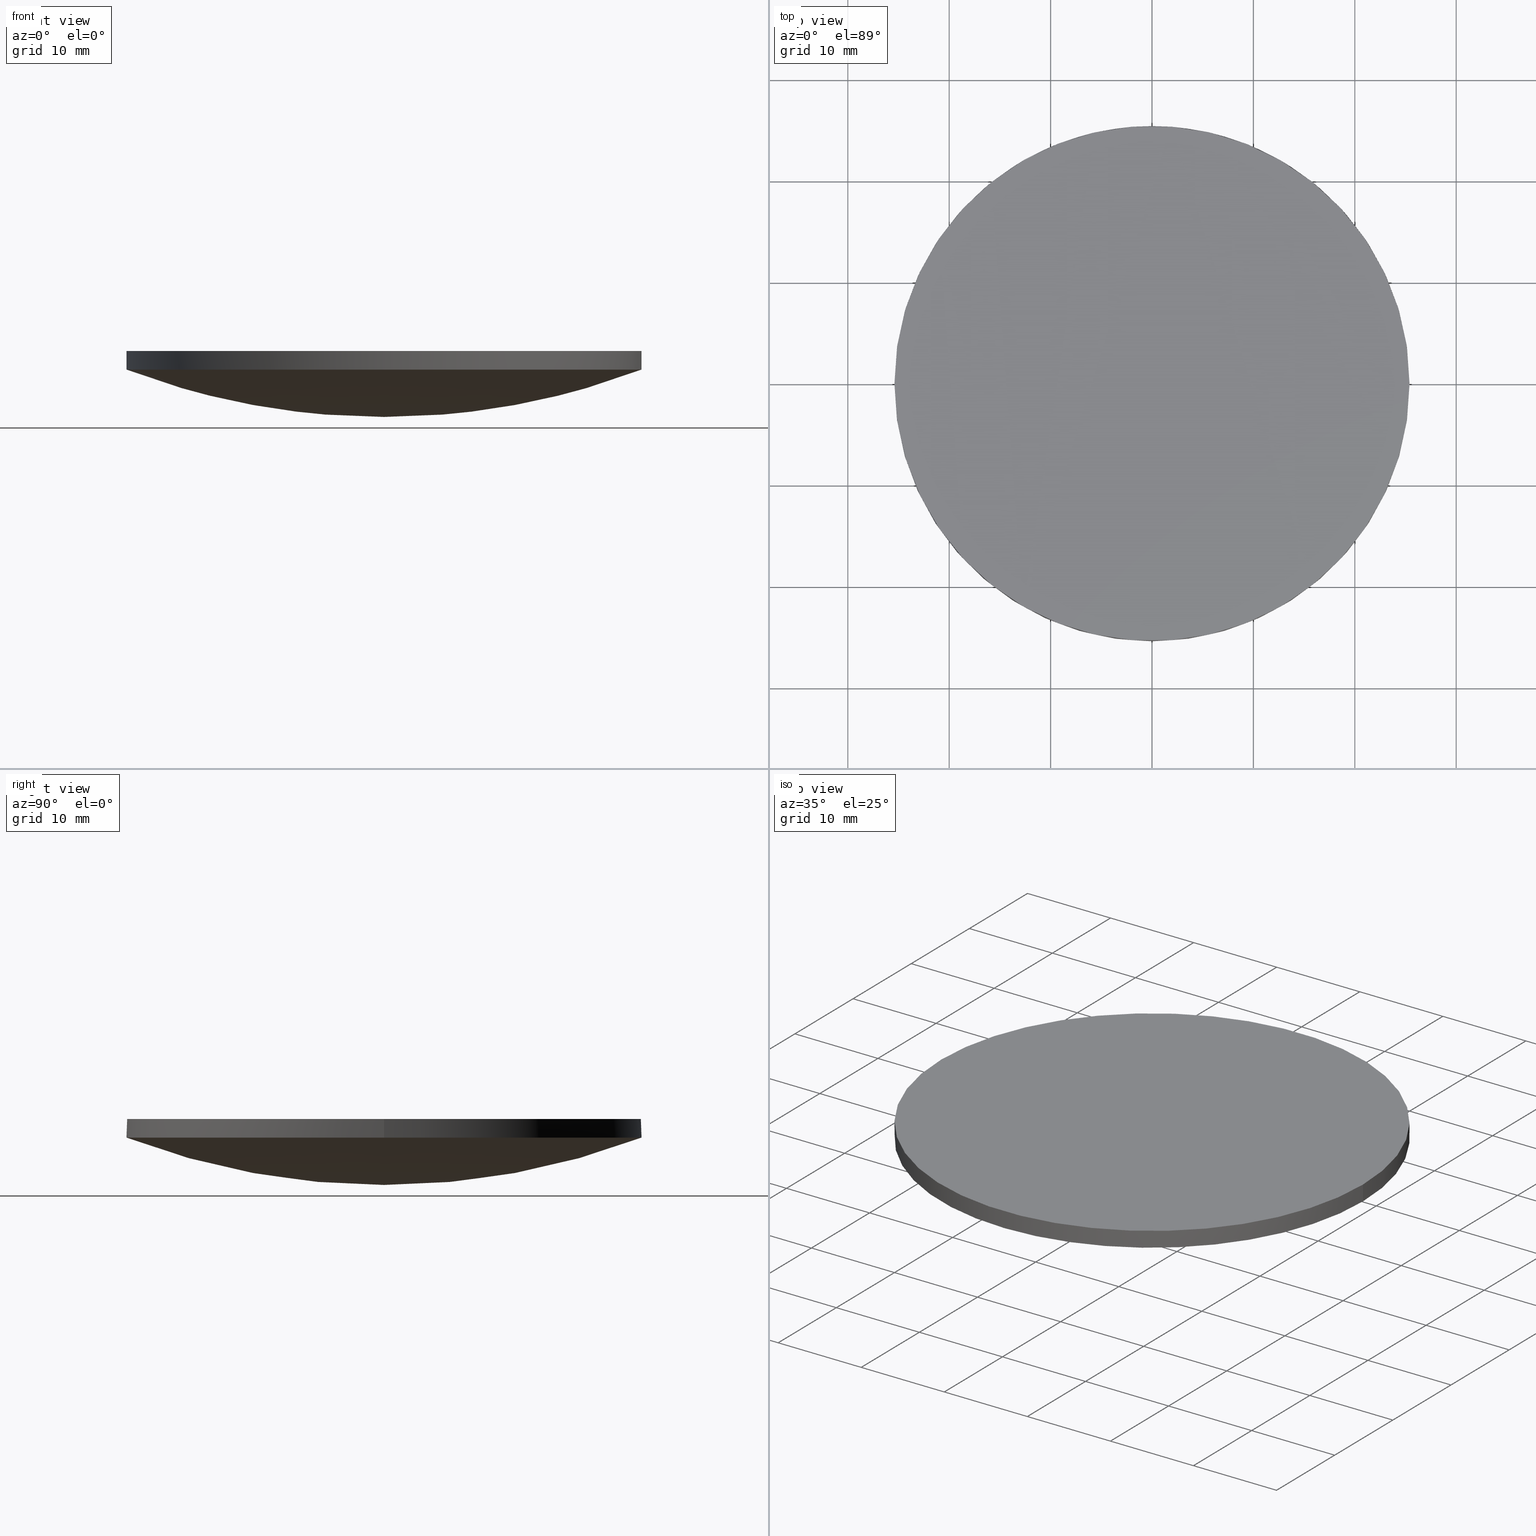
[diagram: canonical four-view strip — front | top / right | iso, engineering-drawing reading convention]
A machine part, canonical four-view strip (front | top / right | iso — engineering-drawing reading convention). The complete STEP part file that produces these views, byte-faithful:
ISO-10303-21;
HEADER;
FILE_DESCRIPTION (( 'STEP AP203' ),
    '1' );
FILE_NAME ('110-1511E UVFS pl-cx 50.8 F150.STEP',
    '2018-12-13T15:10:35',
    ( '' ),
    ( '' ),
    'SwSTEP 2.0',
    'SolidWorks 2017',
    '' );
FILE_SCHEMA (( 'CONFIG_CONTROL_DESIGN' ));
ENDSEC;

DATA;
#1 = APPLICATION_CONTEXT ( 'configuration controlled 3d designs of mechanical parts and assemblies' ) ;
#2 = EDGE_CURVE ( 'NONE', #72, #185, #64, .T. ) ;
#3 = PERSON_AND_ORGANIZATION_ROLE ( 'creator' ) ;
#4 = CALENDAR_DATE ( 2018, 13, 12 ) ;
#5 = LINE ( 'NONE', #129, #232 ) ;
#6 = ORIENTED_EDGE ( 'NONE', *, *, #222, .F. ) ;
#7 = CC_DESIGN_DATE_AND_TIME_ASSIGNMENT ( #191, #135, ( #235 ) ) ;
#8 = AXIS2_PLACEMENT_3D ( 'NONE', #42, #83, #117 ) ;
#9 = COORDINATED_UNIVERSAL_TIME_OFFSET ( 2, 0, .AHEAD. ) ;
#10 = ORIENTED_EDGE ( 'NONE', *, *, #177, .T. ) ;
#11 =( BOUNDED_SURFACE ( )  B_SPLINE_SURFACE ( 3, 3, ( 
 ( #228, #88, #234, #213 ),
 ( #161, #66, #229, #125 ),
 ( #104, #49, #148, #30 ),
 ( #199, #231, #166, #126 ) ),
 .UNSPECIFIED., .F., .F., .F. ) 
 B_SPLINE_SURFACE_WITH_KNOTS ( ( 4, 4 ),
 ( 4, 4 ),
 ( 0.0000000000000000000, 1.000000000000000000 ),
 ( 0.0000000000000000000, 1.000000000000000000 ),
 .UNSPECIFIED. ) 
 GEOMETRIC_REPRESENTATION_ITEM ( )  RATIONAL_B_SPLINE_SURFACE ( (
 ( 1.000000000000000000, 0.9888780142819927300, 0.9888780142819927300, 1.000000000000000000),
 ( 0.9553613089865301600, 0.9447357941524452400, 0.9447357941524452400, 0.9553613089865301600),
 ( 0.9553613089865301600, 0.9447357941524452400, 0.9447357941524452400, 0.9553613089865301600),
 ( 1.000000000000000000, 0.9888780142819927300, 0.9888780142819927300, 1.000000000000000000) ) ) 
 REPRESENTATION_ITEM ( '' )  SURFACE ( )  );
#12 = EDGE_LOOP ( 'NONE', ( #121, #143 ) ) ;
#13 = AXIS2_PLACEMENT_3D ( 'NONE', #167, #18, #73 ) ;
#14 = CARTESIAN_POINT ( 'NONE',  ( 1.339434816747141800E-014, -8.963799327656920100, -1.668294966149202400 ) ) ;
#15 = CARTESIAN_POINT ( 'NONE',  ( 1.339434816747141500E-014, 8.963799327656916600, -1.668294966149198100 ) ) ;
#16 = DATE_AND_TIME ( #91, #189 ) ;
#17 = CIRCLE ( 'NONE', #81, 71.40999999999999700 ) ;
#18 = DIRECTION ( 'NONE',  ( -0.0000000000000000000, -0.0000000000000000000, -1.000000000000000000 ) ) ;
#19 = DIRECTION ( 'NONE',  ( 0.0000000000000000000, 0.0000000000000000000, 1.000000000000000000 ) ) ;
#20 = DIRECTION ( 'NONE',  ( 1.000000000000000000, 0.0000000000000000000, 0.0000000000000000000 ) ) ;
#21 = CIRCLE ( 'NONE', #13, 25.39999999999999900 ) ;
#22 = EDGE_LOOP ( 'NONE', ( #99, #198, #60 ) ) ;
#23 = AXIS2_PLACEMENT_3D ( 'NONE', #140, #45, #179 ) ;
#24 = CC_DESIGN_APPROVAL ( #190, ( #235 ) ) ;
#25 = ORIENTED_EDGE ( 'NONE', *, *, #222, .T. ) ;
#26 = CARTESIAN_POINT ( 'NONE',  ( 23.83508076458894100, 25.69100117748867300, 9.190634176779019200 ) ) ;
#27 = DESIGN_CONTEXT ( 'detailed design', #1, 'design' ) ;
#28 = CC_DESIGN_DATE_AND_TIME_ASSIGNMENT ( #47, #89, ( #127 ) ) ;
#29 = DIRECTION ( 'NONE',  ( -0.0000000000000000000, -0.0000000000000000000, -1.000000000000000000 ) ) ;
#30 = CARTESIAN_POINT ( 'NONE',  ( 0.0000000000000000000, 8.963799327656918300, -1.668294966149200400 ) ) ;
#31 = ORGANIZATION ( 'UNSPECIFIED', 'UNSPECIFIED', '' ) ;
#32 =( LENGTH_UNIT ( ) NAMED_UNIT ( * ) SI_UNIT ( .MILLI., .METRE. ) );
#33 = PRODUCT_RELATED_PRODUCT_CATEGORY ( 'detail', '', ( #141 ) ) ;
#34 = DIRECTION ( 'NONE',  ( 0.0000000000000000000, 0.0000000000000000000, 1.000000000000000000 ) ) ;
#35 = AXIS2_PLACEMENT_3D ( 'NONE', #69, #215, #211 ) ;
#36 = DATE_AND_TIME ( #76, #227 ) ;
#37 = PERSON_AND_ORGANIZATION_ROLE ( 'creator' ) ;
#38 = ADVANCED_FACE ( 'NONE', ( #181 ), #61, .T. ) ;
#39 = APPROVAL_DATE_TIME ( #16, #200 ) ;
#40 = CLOSED_SHELL ( 'NONE', ( #38, #203, #133, #115, #205 ) ) ;
#41 = CIRCLE ( 'NONE', #35, 25.39999999999999900 ) ;
#42 = CARTESIAN_POINT ( 'NONE',  ( 9.992007221626412800E-016, 4.884981308350691100E-015, 6.500000000000000900 ) ) ;
#43 = ORIENTED_EDGE ( 'NONE', *, *, #187, .T. ) ;
#44 = CARTESIAN_POINT ( 'NONE',  ( 8.961635820614196400, 8.963799327656916600, -1.668294966149199300 ) ) ;
#45 = DIRECTION ( 'NONE',  ( 0.0000000000000000000, 0.0000000000000000000, 1.000000000000000000 ) ) ;
#46 = DIRECTION ( 'NONE',  ( -0.0000000000000000000, -0.0000000000000000000, -1.000000000000000000 ) ) ;
#47 = DATE_AND_TIME ( #210, #79 ) ;
#48 = EDGE_LOOP ( 'NONE', ( #193, #25, #139, #78, #54 ) ) ;
#49 = CARTESIAN_POINT ( 'NONE',  ( -17.77376486281806200, 8.963799327656918300, -0.03817278518797361000 ) ) ;
#50 = DIRECTION ( 'NONE',  ( 0.0000000000000000000, 0.0000000000000000000, 1.000000000000000000 ) ) ;
#51 = PRODUCT_DEFINITION_SHAPE ( 'NONE', 'NONE',  #127 ) ;
#52 = CARTESIAN_POINT ( 'NONE',  ( 1.469771453638831500E-014, 25.40000000000001600, 4.669996254120587100 ) ) ;
#53 = PERSON_AND_ORGANIZATION ( #105, #31 ) ;
#54 = ORIENTED_EDGE ( 'NONE', *, *, #134, .F. ) ;
#55 = CARTESIAN_POINT ( 'NONE',  ( 9.992007221626412800E-016, 4.884981308350691100E-015, 4.669996254120579900 ) ) ;
#56 = DIRECTION ( 'NONE',  ( 0.0000000000000000000, 0.0000000000000000000, 1.000000000000000000 ) ) ;
#57 =( NAMED_UNIT ( * ) SI_UNIT ( $, .STERADIAN. ) SOLID_ANGLE_UNIT ( ) );
#58 = COORDINATED_UNIVERSAL_TIME_OFFSET ( 2, 0, .AHEAD. ) ;
#59 = CYLINDRICAL_SURFACE ( 'NONE', #23, 25.39999999999999900 ) ;
#60 = ORIENTED_EDGE ( 'NONE', *, *, #134, .T. ) ;
#61 =( BOUNDED_SURFACE ( )  B_SPLINE_SURFACE ( 3, 3, ( 
 ( #223, #98, #225, #160 ),
 ( #14, #157, #118, #176 ),
 ( #15, #44, #65, #82 ),
 ( #194, #207, #226, #26 ) ),
 .UNSPECIFIED., .F., .F., .F. ) 
 B_SPLINE_SURFACE_WITH_KNOTS ( ( 4, 4 ),
 ( 4, 4 ),
 ( 0.0000000000000000000, 1.000000000000000000 ),
 ( 0.0000000000000000000, 1.000000000000000000 ),
 .UNSPECIFIED. ) 
 GEOMETRIC_REPRESENTATION_ITEM ( )  RATIONAL_B_SPLINE_SURFACE ( (
 ( 1.000000000000000000, 0.9888780142819927300, 0.9888780142819927300, 1.000000000000000000),
 ( 0.9553613089865301600, 0.9447357941524452400, 0.9447357941524452400, 0.9553613089865301600),
 ( 0.9553613089865301600, 0.9447357941524452400, 0.9447357941524452400, 0.9553613089865301600),
 ( 1.000000000000000000, 0.9888780142819927300, 0.9888780142819927300, 1.000000000000000000) ) ) 
 REPRESENTATION_ITEM ( '' )  SURFACE ( )  );
#62 = PERSON_AND_ORGANIZATION_ROLE ( 'classification_officer' ) ;
#63 = APPROVAL_ROLE ( '' ) ;
#64 = CIRCLE ( 'NONE', #8, 25.39999999999999900 ) ;
#65 = CARTESIAN_POINT ( 'NONE',  ( 17.77376486281810100, 8.963799327656916600, -0.03817278518798098600 ) ) ;
#66 = CARTESIAN_POINT ( 'NONE',  ( -17.77376486281806200, -8.963799327656918300, -0.03817278518796277100 ) ) ;
#67 = PERSON_AND_ORGANIZATION ( #105, #31 ) ;
#68 = CC_DESIGN_PERSON_AND_ORGANIZATION_ASSIGNMENT ( #221, #62, ( #235 ) ) ;
#69 = CARTESIAN_POINT ( 'NONE',  ( 9.992007221626412800E-016, 4.884981308350691100E-015, 6.500000000000000900 ) ) ;
#70 = DIRECTION ( 'NONE',  ( 1.000000000000000000, 0.0000000000000000000, 0.0000000000000000000 ) ) ;
#71 = VECTOR ( 'NONE', #56, 1000.000000000000000 ) ;
#72 = VERTEX_POINT ( 'NONE', #122 ) ;
#73 = DIRECTION ( 'NONE',  ( 1.000000000000000000, 8.881784197001252300E-016, 0.0000000000000000000 ) ) ;
#74 = DIRECTION ( 'NONE',  ( 0.0000000000000000000, 0.0000000000000000000, 1.000000000000000000 ) ) ;
#75 = CC_DESIGN_SECURITY_CLASSIFICATION ( #235, ( #108 ) ) ;
#76 = CALENDAR_DATE ( 2018, 13, 12 ) ;
#77 = FACE_OUTER_BOUND ( 'NONE', #147, .T. ) ;
#78 = ORIENTED_EDGE ( 'NONE', *, *, #187, .F. ) ;
#79 = LOCAL_TIME ( 17, 10, 35.00000000000000000, #116 ) ;
#80 = FACE_OUTER_BOUND ( 'NONE', #12, .T. ) ;
#81 = AXIS2_PLACEMENT_3D ( 'NONE', #153, #168, #150 ) ;
#82 = CARTESIAN_POINT ( 'NONE',  ( 26.14236200655383200, 8.963799327656914800, 3.167680989888688200 ) ) ;
#83 = DIRECTION ( 'NONE',  ( -0.0000000000000000000, -0.0000000000000000000, -1.000000000000000000 ) ) ;
#84 = CALENDAR_DATE ( 2018, 13, 12 ) ;
#85 = ADVANCED_BREP_SHAPE_REPRESENTATION ( '110-1511E UVFS pl-cx 50.8 F150', ( #155, #214 ), #204 ) ;
#86 = CARTESIAN_POINT ( 'NONE',  ( 25.39999999999999900, 4.884981308350691100E-015, 4.669996254120579900 ) ) ;
#87 = LOCAL_TIME ( 17, 10, 35.00000000000000000, #9 ) ;
#88 = CARTESIAN_POINT ( 'NONE',  ( -16.20508203848895000, -25.69100117748867600, 6.267723705672469900 ) ) ;
#89 = DATE_TIME_ROLE ( 'creation_date' ) ;
#90 = CARTESIAN_POINT ( 'NONE',  ( 25.39999999999999900, 4.884981308350691100E-015, 4.669996254120579900 ) ) ;
#91 = CALENDAR_DATE ( 2018, 13, 12 ) ;
#92 = APPLICATION_CONTEXT ( 'configuration controlled 3d designs of mechanical parts and assemblies' ) ;
#93 = APPLICATION_PROTOCOL_DEFINITION ( 'international standard', 'config_control_design', 1994, #92 ) ;
#94 = FACE_OUTER_BOUND ( 'NONE', #48, .T. ) ;
#95 = AXIS2_PLACEMENT_3D ( 'NONE', #163, #29, #165 ) ;
#96 = APPROVAL_DATE_TIME ( #130, #162 ) ;
#97 = COORDINATED_UNIVERSAL_TIME_OFFSET ( 2, 0, .AHEAD. ) ;
#98 = CARTESIAN_POINT ( 'NONE',  ( 8.170696799073594400, -25.69100117748867600, 4.781473387907825100 ) ) ;
#99 = ORIENTED_EDGE ( 'NONE', *, *, #119, .T. ) ;
#100 = CARTESIAN_POINT ( 'NONE',  ( 9.992007221626412800E-016, 4.884981308350691100E-015, 4.669996254120579900 ) ) ;
#101 = APPROVAL_PERSON_ORGANIZATION ( #123, #190, #188 ) ;
#102 = CARTESIAN_POINT ( 'NONE',  ( -25.39999999999999900, 7.995584178184967200E-015, 4.669996254120579900 ) ) ;
#103 = ORIENTED_EDGE ( 'NONE', *, *, #149, .F. ) ;
#104 = CARTESIAN_POINT ( 'NONE',  ( -26.14236200655380000, 8.963799327656916600, 3.167680989888695300 ) ) ;
#105 = PERSON ( 'UNSPECIFIED', 'UNSPECIFIED', 'UNSPECIFIED', ('UNSPECIFIED'), ('UNSPECIFIED'), ('UNSPECIFIED') ) ;
#106 = DIRECTION ( 'NONE',  ( 1.000000000000000000, 0.0000000000000000000, -0.0000000000000000000 ) ) ;
#107 = APPLICATION_PROTOCOL_DEFINITION ( 'international standard', 'config_control_design', 1994, #1 ) ;
#108 = PRODUCT_DEFINITION_FORMATION_WITH_SPECIFIED_SOURCE ( 'ANY', '', #141, .NOT_KNOWN. ) ;
#109 = APPROVAL_ROLE ( '' ) ;
#110 = UNCERTAINTY_MEASURE_WITH_UNIT (LENGTH_MEASURE( 1.000000000000000100E-005 ), #32, 'distance_accuracy_value', 'NONE');
#111 = SECURITY_CLASSIFICATION_LEVEL ( 'unclassified' ) ;
#112 = APPROVAL_STATUS ( 'not_yet_approved' ) ;
#113 = ORIENTED_EDGE ( 'NONE', *, *, #212, .F. ) ;
#114 = PERSON_AND_ORGANIZATION_ROLE ( 'design_supplier' ) ;
#115 = ADVANCED_FACE ( 'NONE', ( #77 ), #59, .T. ) ;
#116 = COORDINATED_UNIVERSAL_TIME_OFFSET ( 2, 0, .AHEAD. ) ;
#117 = DIRECTION ( 'NONE',  ( 1.000000000000000000, 0.0000000000000000000, 0.0000000000000000000 ) ) ;
#118 = CARTESIAN_POINT ( 'NONE',  ( 17.77376486281809800, -8.963799327656920100, -0.03817278518798487800 ) ) ;
#119 = EDGE_CURVE ( 'NONE', #216, #136, #138, .T. ) ;
#120 = CIRCLE ( 'NONE', #142, 25.39999999999999900 ) ;
#121 = ORIENTED_EDGE ( 'NONE', *, *, #2, .F. ) ;
#122 = CARTESIAN_POINT ( 'NONE',  ( 25.39999999999999900, 4.884981308350691100E-015, 6.500000000000000900 ) ) ;
#123 = PERSON_AND_ORGANIZATION ( #105, #31 ) ;
#124 = EDGE_CURVE ( 'NONE', #185, #72, #41, .T. ) ;
#125 = CARTESIAN_POINT ( 'NONE',  ( 0.0000000000000000000, -8.963799327656918300, -1.668294966149191900 ) ) ;
#126 = CARTESIAN_POINT ( 'NONE',  ( 0.0000000000000000000, 25.69100117748867600, 4.781473387907820600 ) ) ;
#127 = PRODUCT_DEFINITION ( 'UNKNOWN', '', #108, #27 ) ;
#128 = CARTESIAN_POINT ( 'NONE',  ( -25.39999999999999900, 7.995584178184967200E-015, 6.500000000000000900 ) ) ;
#129 = CARTESIAN_POINT ( 'NONE',  ( -25.39999999999999900, 7.995584178184967200E-015, 4.669996254120579900 ) ) ;
#130 = DATE_AND_TIME ( #4, #175 ) ;
#131 = CIRCLE ( 'NONE', #95, 25.39999999999999900 ) ;
#132 = APPROVAL_STATUS ( 'not_yet_approved' ) ;
#133 = ADVANCED_FACE ( 'NONE', ( #164 ), #11, .T. ) ;
#134 = EDGE_CURVE ( 'NONE', #202, #216, #120, .T. ) ;
#135 = DATE_TIME_ROLE ( 'classification_date' ) ;
#136 = VERTEX_POINT ( 'NONE', #145 ) ;
#137 = COORDINATED_UNIVERSAL_TIME_OFFSET ( 2, 0, .AHEAD. ) ;
#138 = CIRCLE ( 'NONE', #233, 25.39999999999999900 ) ;
#139 = ORIENTED_EDGE ( 'NONE', *, *, #124, .T. ) ;
#140 = CARTESIAN_POINT ( 'NONE',  ( 9.992007221626412800E-016, 4.884981308350691100E-015, 4.669996254120579900 ) ) ;
#141 = PRODUCT ( '110-1511E UVFS pl-cx 50.8 F150', '110-1511E UVFS pl-cx 50.8 F150', '', ( #220 ) ) ;
#142 = AXIS2_PLACEMENT_3D ( 'NONE', #100, #46, #144 ) ;
#143 = ORIENTED_EDGE ( 'NONE', *, *, #124, .F. ) ;
#144 = DIRECTION ( 'NONE',  ( 1.000000000000000000, -1.776356839400250500E-015, 0.0000000000000000000 ) ) ;
#145 = CARTESIAN_POINT ( 'NONE',  ( 1.469771453638831500E-014, -25.40000000000000900, 4.669996254120580800 ) ) ;
#146 = PERSON_AND_ORGANIZATION ( #105, #31 ) ;
#147 = EDGE_LOOP ( 'NONE', ( #6, #103, #209, #43, #159 ) ) ;
#148 = CARTESIAN_POINT ( 'NONE',  ( -8.961635820614175100, 8.963799327656918300, -1.668294966149196800 ) ) ;
#149 = EDGE_CURVE ( 'NONE', #136, #152, #131, .T. ) ;
#150 = DIRECTION ( 'NONE',  ( 0.0000000000000000000, -1.000000000000000000, -3.886791151887539000E-016 ) ) ;
#151 =( NAMED_UNIT ( * ) PLANE_ANGLE_UNIT ( ) SI_UNIT ( $, .RADIAN. ) );
#152 = VERTEX_POINT ( 'NONE', #102 ) ;
#153 = CARTESIAN_POINT ( 'NONE',  ( 2.842170943040400100E-014, 7.105427357601000300E-015, 71.40999999999999700 ) ) ;
#154 = PERSON_AND_ORGANIZATION ( #105, #31 ) ;
#155 = MANIFOLD_SOLID_BREP ( 'Imported1', #40 ) ;
#156 = PERSON_AND_ORGANIZATION ( #105, #31 ) ;
#157 = CARTESIAN_POINT ( 'NONE',  ( 8.961635820614196400, -8.963799327656920100, -1.668294966149203700 ) ) ;
#158 = AXIS2_PLACEMENT_3D ( 'NONE', #55, #34, #20 ) ;
#159 = ORIENTED_EDGE ( 'NONE', *, *, #2, .T. ) ;
#160 = CARTESIAN_POINT ( 'NONE',  ( 23.83508076458893400, -25.69100117748868000, 9.190634176779017400 ) ) ;
#161 = CARTESIAN_POINT ( 'NONE',  ( -26.14236200655379600, -8.963799327656920100, 3.167680989888705500 ) ) ;
#162 = APPROVAL ( #173, 'UNSPECIFIED' ) ;
#163 = CARTESIAN_POINT ( 'NONE',  ( 9.992007221626412800E-016, 4.884981308350691100E-015, 4.669996254120579900 ) ) ;
#164 = FACE_OUTER_BOUND ( 'NONE', #195, .T. ) ;
#165 = DIRECTION ( 'NONE',  ( 1.000000000000000000, 0.0000000000000000000, 0.0000000000000000000 ) ) ;
#166 = CARTESIAN_POINT ( 'NONE',  ( -8.170696799073578400, 25.69100117748867300, 4.781473387907825900 ) ) ;
#167 = CARTESIAN_POINT ( 'NONE',  ( 9.992007221626412800E-016, 4.884981308350691100E-015, 4.669996254120579900 ) ) ;
#168 = DIRECTION ( 'NONE',  ( 1.000000000000000000, 8.367767716424150400E-032, -2.056337147698020000E-016 ) ) ;
#169 = LINE ( 'NONE', #86, #71 ) ;
#170 = CC_DESIGN_PERSON_AND_ORGANIZATION_ASSIGNMENT ( #53, #114, ( #108 ) ) ;
#171 = PERSON_AND_ORGANIZATION ( #105, #31 ) ;
#172 = AXIS2_PLACEMENT_3D ( 'NONE', #217, #50, #106 ) ;
#173 = APPROVAL_STATUS ( 'not_yet_approved' ) ;
#174 = ORIENTED_EDGE ( 'NONE', *, *, #149, .T. ) ;
#175 = LOCAL_TIME ( 17, 10, 35.00000000000000000, #137 ) ;
#176 = CARTESIAN_POINT ( 'NONE',  ( 26.14236200655382800, -8.963799327656921900, 3.167680989888684200 ) ) ;
#177 = EDGE_CURVE ( 'NONE', #152, #202, #21, .T. ) ;
#178 = CC_DESIGN_PERSON_AND_ORGANIZATION_ASSIGNMENT ( #146, #3, ( #127 ) ) ;
#179 = DIRECTION ( 'NONE',  ( 1.000000000000000000, 0.0000000000000000000, 0.0000000000000000000 ) ) ;
#180 = CARTESIAN_POINT ( 'NONE',  ( 9.992007221626412800E-016, 4.884981308350691100E-015, 4.669996254120579900 ) ) ;
#181 = FACE_OUTER_BOUND ( 'NONE', #22, .T. ) ;
#182 = APPROVAL_DATE_TIME ( #36, #190 ) ;
#183 = CARTESIAN_POINT ( 'NONE',  ( 0.0000000000000000000, 0.0000000000000000000, 0.0000000000000000000 ) ) ;
#184 = PLANE ( 'NONE',  #172 ) ;
#185 = VERTEX_POINT ( 'NONE', #128 ) ;
#186 = CC_DESIGN_PERSON_AND_ORGANIZATION_ASSIGNMENT ( #171, #218, ( #141 ) ) ;
#187 = EDGE_CURVE ( 'NONE', #216, #72, #169, .T. ) ;
#188 = APPROVAL_ROLE ( '' ) ;
#189 = LOCAL_TIME ( 17, 10, 35.00000000000000000, #97 ) ;
#190 = APPROVAL ( #112, 'UNSPECIFIED' ) ;
#191 = DATE_AND_TIME ( #84, #87 ) ;
#192 = CC_DESIGN_APPROVAL ( #162, ( #108 ) ) ;
#193 = ORIENTED_EDGE ( 'NONE', *, *, #177, .F. ) ;
#194 = CARTESIAN_POINT ( 'NONE',  ( 1.472063799352087200E-014, 25.69100117748867600, 4.781473387907825100 ) ) ;
#195 = EDGE_LOOP ( 'NONE', ( #113, #174, #10 ) ) ;
#196 = DIRECTION ( 'NONE',  ( 1.000000000000000000, 0.0000000000000000000, 0.0000000000000000000 ) ) ;
#197 = DIRECTION ( 'NONE',  ( -0.0000000000000000000, -0.0000000000000000000, -1.000000000000000000 ) ) ;
#198 = ORIENTED_EDGE ( 'NONE', *, *, #212, .T. ) ;
#199 = CARTESIAN_POINT ( 'NONE',  ( -23.83508076458890600, 25.69100117748867600, 9.190634176779024500 ) ) ;
#200 = APPROVAL ( #132, 'UNSPECIFIED' ) ;
#201 = SHAPE_DEFINITION_REPRESENTATION ( #51, #85 ) ;
#202 = VERTEX_POINT ( 'NONE', #52 ) ;
#203 = ADVANCED_FACE ( 'NONE', ( #94 ), #208, .T. ) ;
#204 =( GEOMETRIC_REPRESENTATION_CONTEXT ( 3 ) GLOBAL_UNCERTAINTY_ASSIGNED_CONTEXT ( ( #110 ) ) GLOBAL_UNIT_ASSIGNED_CONTEXT ( ( #32, #151, #57 ) ) REPRESENTATION_CONTEXT ( 'NONE', 'WORKASPACE' ) );
#205 = ADVANCED_FACE ( 'NONE', ( #80 ), #184, .T. ) ;
#206 = CC_DESIGN_PERSON_AND_ORGANIZATION_ASSIGNMENT ( #67, #37, ( #108 ) ) ;
#207 = CARTESIAN_POINT ( 'NONE',  ( 8.170696799073597900, 25.69100117748867300, 4.781473387907825100 ) ) ;
#208 = CYLINDRICAL_SURFACE ( 'NONE', #158, 25.39999999999999900 ) ;
#209 = ORIENTED_EDGE ( 'NONE', *, *, #119, .F. ) ;
#210 = CALENDAR_DATE ( 2018, 13, 12 ) ;
#211 = DIRECTION ( 'NONE',  ( 1.000000000000000000, 0.0000000000000000000, 0.0000000000000000000 ) ) ;
#212 = EDGE_CURVE ( 'NONE', #136, #202, #17, .T. ) ;
#213 = CARTESIAN_POINT ( 'NONE',  ( 0.0000000000000000000, -25.69100117748868000, 4.781473387907838400 ) ) ;
#214 = AXIS2_PLACEMENT_3D ( 'NONE', #183, #19, #70 ) ;
#215 = DIRECTION ( 'NONE',  ( -0.0000000000000000000, -0.0000000000000000000, -1.000000000000000000 ) ) ;
#216 = VERTEX_POINT ( 'NONE', #90 ) ;
#217 = CARTESIAN_POINT ( 'NONE',  ( 0.0000000000000000000, 52.02000000000000300, 6.500000000000000900 ) ) ;
#218 = PERSON_AND_ORGANIZATION_ROLE ( 'design_owner' ) ;
#219 = APPROVAL_PERSON_ORGANIZATION ( #156, #162, #63 ) ;
#220 = MECHANICAL_CONTEXT ( 'NONE', #92, 'mechanical' ) ;
#221 = PERSON_AND_ORGANIZATION ( #105, #31 ) ;
#222 = EDGE_CURVE ( 'NONE', #152, #185, #5, .T. ) ;
#223 = CARTESIAN_POINT ( 'NONE',  ( 1.472063799352087800E-014, -25.69100117748868000, 4.781473387907825100 ) ) ;
#224 = CC_DESIGN_APPROVAL ( #200, ( #127 ) ) ;
#225 = CARTESIAN_POINT ( 'NONE',  ( 16.20508203848898500, -25.69100117748868000, 6.267723705672449500 ) ) ;
#226 = CARTESIAN_POINT ( 'NONE',  ( 16.20508203848898900, 25.69100117748866900, 6.267723705672451300 ) ) ;
#227 = LOCAL_TIME ( 17, 10, 35.00000000000000000, #58 ) ;
#228 = CARTESIAN_POINT ( 'NONE',  ( -23.83508076458889500, -25.69100117748868000, 9.190634176779038700 ) ) ;
#229 = CARTESIAN_POINT ( 'NONE',  ( -8.961635820614173300, -8.963799327656918300, -1.668294966149188200 ) ) ;
#230 = APPROVAL_PERSON_ORGANIZATION ( #154, #200, #109 ) ;
#231 = CARTESIAN_POINT ( 'NONE',  ( -16.20508203848895700, 25.69100117748867300, 6.267723705672457500 ) ) ;
#232 = VECTOR ( 'NONE', #74, 1000.000000000000000 ) ;
#233 = AXIS2_PLACEMENT_3D ( 'NONE', #180, #197, #196 ) ;
#234 = CARTESIAN_POINT ( 'NONE',  ( -8.170696799073573000, -25.69100117748867600, 4.781473387907841000 ) ) ;
#235 = SECURITY_CLASSIFICATION ( '', '', #111 ) ;
ENDSEC;
END-ISO-10303-21;
